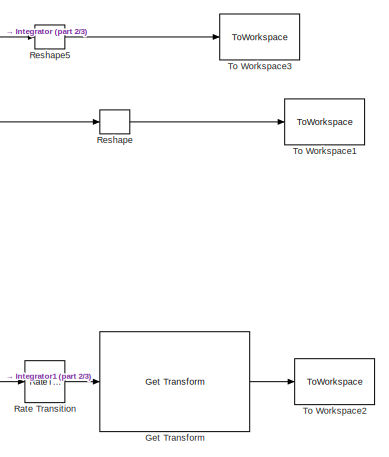
[diagram: root canvas - part 1/3, top right region]
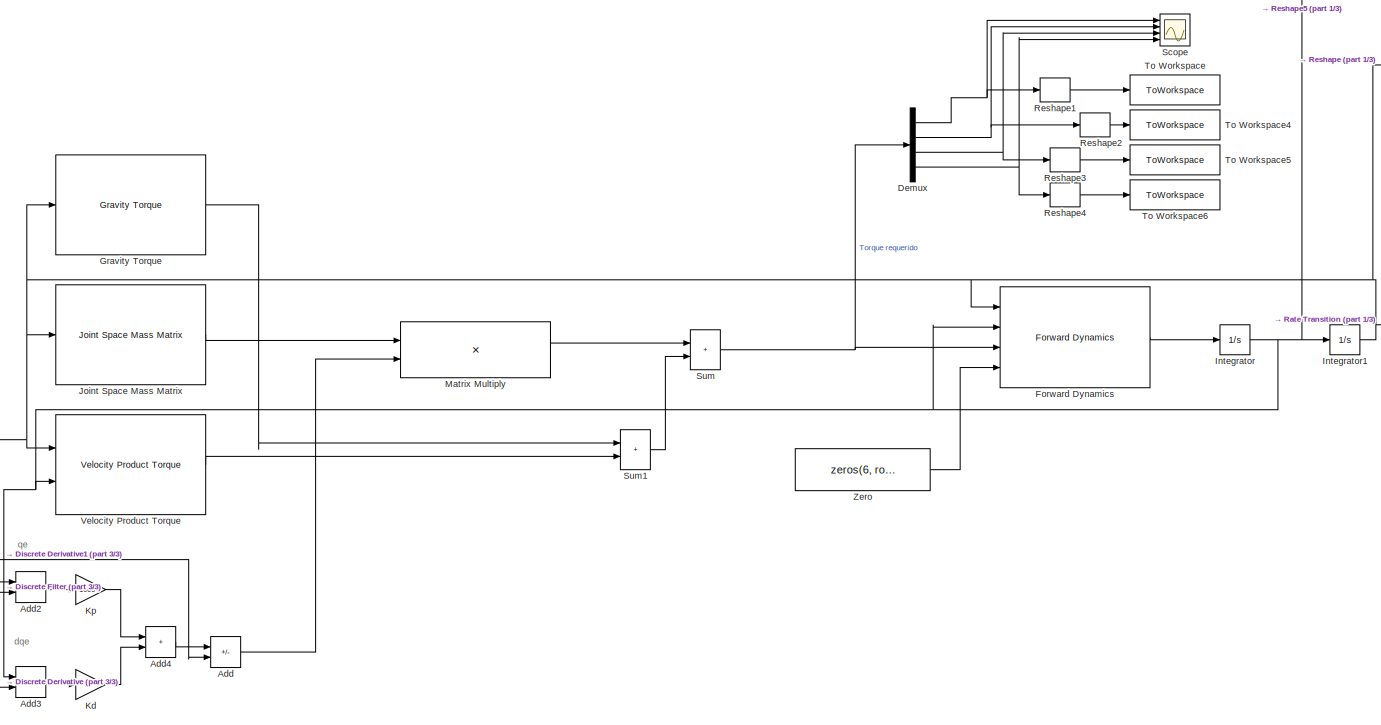
[diagram: root canvas - part 2/3, right side, full height]
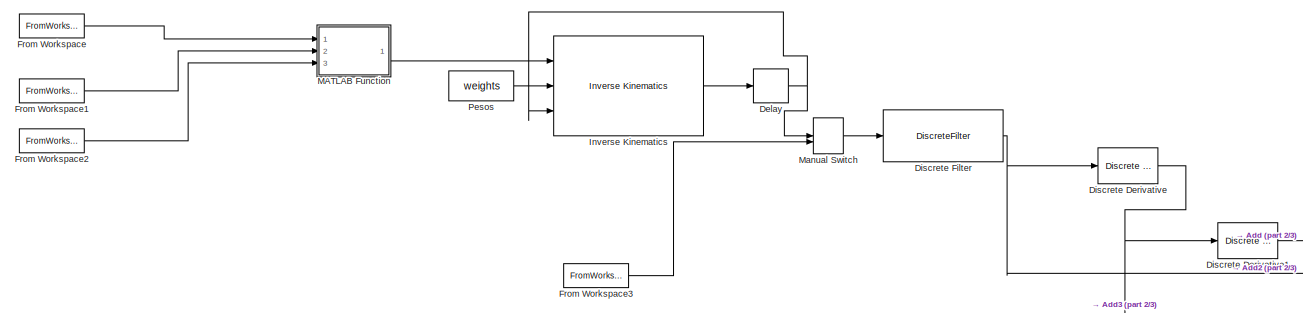
[diagram: root canvas - part 3/3, bottom left region]
MODEL slx_92962a83a6d9
KIND model
CONFIG AbsTol = auto
CONFIG EnableMultiTasking = off
CONFIG FixedStep = 0.001
CONFIG MaxStep = 10^-3
CONFIG MinStep = 10^-4
CONFIG RelTol = 1e-3
CONFIG SampleTimeConstraint = Unconstrained
CONFIG Solver = VariableStepAuto
CONFIG SolverName = VariableStepAuto
CONFIG StartTime = 0.0
CONFIG StopTime = 2
BLOCK [Sum] Add
  IconShape = rectangular
  Inputs = -+
  Ports = [2, 1]
BLOCK [Sum] Add2
  IconShape = rectangular
  Inputs = +-
  Ports = [2, 1]
BLOCK [Sum] Add3
  IconShape = rectangular
  Inputs = +-
  Ports = [2, 1]
BLOCK [Sum] Add4
  IconShape = rectangular
  Ports = [2, 1]
BLOCK [Delay] Delay
  DelayLength = 1
  InputPortMap = u0
  Ports = [1, 1]
BLOCK [Demux] Demux
  Ports = [1, 4]
BLOCK [Reference] Discrete Derivative  REF=simulink/Discrete/Discrete Derivative
  Ports = [1, 1]
  SourceBlock = simulink/Discrete/Discrete Derivative
  SourceProductBaseCode = SL
  SourceType = Discrete Derivative
BLOCK [Reference] Discrete Derivative1  REF=simulink/Discrete/Discrete Derivative
  Ports = [1, 1]
  SourceBlock = simulink/Discrete/Discrete Derivative
  SourceProductBaseCode = SL
  SourceType = Discrete Derivative
BLOCK [DiscreteFilter] Discrete Filter
  Denominator = [1]
  InitialStates = repmat(q0',19,1)
  InputPortMap = u0
  Numerator = ones(1,20)*1/20
  Ports = [1, 1]
BLOCK [Reference] Forward Dynamics  REF=robotmaniplib/Forward Dynamics
  Ports = [4, 1]
  SourceBlock = robotmaniplib/Forward Dynamics
  SourceProductBaseCode = RO
  SourceType = Forward Dynamics
BLOCK [FromWorkspace] From Workspace
  VariableName = posx
BLOCK [FromWorkspace] From Workspace1
  VariableName = posy
BLOCK [FromWorkspace] From Workspace2
  VariableName = posz
BLOCK [FromWorkspace] From Workspace3
  VariableName = q2
BLOCK [Reference] Get Transform  REF=robotmaniplib/Get Transform
  Ports = [1, 1]
  SourceBlock = robotmaniplib/Get Transform
  SourceProductBaseCode = RO
  SourceType = Get Transform
BLOCK [Reference] Gravity Torque  REF=robotmaniplib/Gravity Torque
  Ports = [1, 1]
  SourceBlock = robotmaniplib/Gravity Torque
  SourceProductBaseCode = RO
  SourceType = Gravity Torque
BLOCK [Integrator] Integrator
  Ports = [1, 1]
BLOCK [Integrator] Integrator1
  Ports = [1, 1]
BLOCK [Reference] Inverse Kinematics  REF=robotmaniplib/Inverse Kinematics
  Ports = [3, 2]
  SourceBlock = robotmaniplib/Inverse Kinematics
  SourceProductBaseCode = RO
  SourceType = Inverse Kinematics
BLOCK [Reference] Joint Space Mass Matrix  REF=robotmaniplib/Joint Space Mass Matrix
  Ports = [1, 1]
  SourceBlock = robotmaniplib/Joint Space Mass Matrix
  SourceProductBaseCode = RO
  SourceType = Joint Space Mass Matrix
BLOCK [Gain] Kd
BLOCK [Gain] Kp
  Gain = 1000
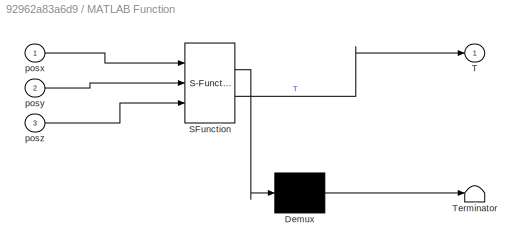
BLOCK [SubSystem] MATLAB Function
  ErrorFcn = Stateflow.Translate.translate
  PermitHierarchicalResolution = ExplicitOnly
  Ports = [3, 1]
  RequestExecContextInheritance = off
  SFBlockType = MATLAB Function
  TreatAsAtomicUnit = on
BLOCK [Demux] MATLAB Function/ Demux 
  Outputs = 1
  Ports = [1, 1]
BLOCK [S-Function] MATLAB Function/ SFunction 
  EnableBusSupport = on
  FunctionName = sf_sfun
  PortCounts = [3 2]
  Ports = [3, 2]
  SFcnIsStateOwnerBlock = off
  SFunctionDeploymentMode = off
  Tag = Stateflow S-Function 2
BLOCK [Terminator] MATLAB Function/ Terminator 
BLOCK [Outport] MATLAB Function/T
BLOCK [Inport] MATLAB Function/posx
BLOCK [Inport] MATLAB Function/posy
  Port = 2
BLOCK [Inport] MATLAB Function/posz
  Port = 3
BLOCK [ManualSwitch] Manual Switch
  CurrentSetting = 0
BLOCK [Product] Matrix Multiply
  Multiplication = Matrix(*)
  Ports = [2, 1]
BLOCK [Constant] Pesos
  Value = weights
BLOCK [RateTransition] Rate Transition
BLOCK [Reshape] Reshape
  Ports = [1, 1]
BLOCK [Reshape] Reshape1
  Ports = [1, 1]
BLOCK [Reshape] Reshape2
  Ports = [1, 1]
BLOCK [Reshape] Reshape3
  Ports = [1, 1]
BLOCK [Reshape] Reshape4
  Ports = [1, 1]
BLOCK [Reshape] Reshape5
  Ports = [1, 1]
BLOCK [Scope] Scope
  Floating = off
  NumInputPorts = 4
  Ports = [4]
  ScopeSpecificationString = Simulink.scopes.TimeScopeBlockCfg('CurrentConfiguration', extmgr.ConfigurationSet(extmgr.Configuration('Core','General UI',true),extmgr.Configuration('Core','Source UI',true),extmgr.Configuration('Sources','WiredSimulink',true),extmgr.Configuration('Visuals','Time Domain',true,'SerializedDisplays',{struct('MinYLimReal','-0.51727','MaxYLimReal','1.12669','YLabelReal','','MinYLimMag','0.00000','MaxY...<+3358ch>
BLOCK [Sum] Sum
  IconShape = rectangular
  Inputs = |++
  Ports = [2, 1]
BLOCK [Sum] Sum1
  IconShape = rectangular
  Inputs = |++
  Ports = [2, 1]
BLOCK [ToWorkspace] To Workspace
  FixptAsFi = on
  MaxDataPoints = inf
  Ports = [1]
  SampleTime = -1
  SaveFormat = Timeseries
  VariableName = torque1
BLOCK [ToWorkspace] To Workspace1
  FixptAsFi = on
  MaxDataPoints = inf
  Ports = [1]
  SampleTime = -1
  Save2DSignal = 2-D array (concatenate along first dimension)
  VariableName = jointData
BLOCK [ToWorkspace] To Workspace2
  FixptAsFi = on
  MaxDataPoints = inf
  Ports = [1]
  SampleTime = -1
  VariableName = poseData
BLOCK [ToWorkspace] To Workspace3
  FixptAsFi = on
  MaxDataPoints = inf
  Ports = [1]
  SampleTime = -1
  Save2DSignal = 2-D array (concatenate along first dimension)
  VariableName = velocidades
BLOCK [ToWorkspace] To Workspace4
  FixptAsFi = on
  MaxDataPoints = inf
  Ports = [1]
  SampleTime = -1
  SaveFormat = Timeseries
  VariableName = torque2
BLOCK [ToWorkspace] To Workspace5
  FixptAsFi = on
  MaxDataPoints = inf
  Ports = [1]
  SampleTime = -1
  SaveFormat = Timeseries
  VariableName = torque3
BLOCK [ToWorkspace] To Workspace6
  FixptAsFi = on
  MaxDataPoints = inf
  Ports = [1]
  SampleTime = -1
  SaveFormat = Timeseries
  VariableName = torque4
BLOCK [Reference] Velocity Product Torque  REF=robotmaniplib/Velocity Product Torque
  Ports = [2, 1]
  SourceBlock = robotmaniplib/Velocity Product Torque
  SourceProductBaseCode = RO
  SourceType = Velocity Product Torque
BLOCK [Constant] Zero
  OutDataTypeStr = Inherit: Inherit via back propagation
  Value = zeros(6, robot.NumBodies)
ANNOTATION (root): qe
ANNOTATION (root): dqe
LINE Add2:1 -> Kp:1
LINE Add3:1 -> Kd:1
LINE Add4:1 -> Add:1
LINE Add:1 -> Matrix Multiply:2
NET Delay:1 -> Inverse Kinematics:3, Manual Switch:1
NET Demux:1 -> Reshape1:1, Scope:1
NET Demux:2 -> Reshape2:1, Scope:2
NET Demux:3 -> Reshape3:1, Scope:3
NET Demux:4 -> Reshape4:1, Scope:4
LINE Discrete Derivative1:1 -> Add:2
NET Discrete Derivative:1 -> Add3:2, Discrete Derivative1:1
NET Discrete Filter:1 -> Add2:2, Discrete Derivative:1
LINE Forward Dynamics:1 -> Integrator:1
LINE From Workspace1:1 -> MATLAB Function:2
LINE From Workspace2:1 -> MATLAB Function:3
LINE From Workspace3:1 -> Manual Switch:2
LINE From Workspace:1 -> MATLAB Function:1
LINE Get Transform:1 -> To Workspace2:1
LINE Gravity Torque:1 -> Sum1:1
NET Integrator1:1 -> Add2:1, Forward Dynamics:1, Gravity Torque:1, Joint Space Mass Matrix:1, Rate Transition:1, Reshape:1, Velocity Product Torque:1
NET Integrator:1 -> Add3:1, Forward Dynamics:2, Integrator1:1, Reshape5:1, Velocity Product Torque:2
LINE Inverse Kinematics:1 -> Delay:1
LINE Joint Space Mass Matrix:1 -> Matrix Multiply:1
LINE Kd:1 -> Add4:2
LINE Kp:1 -> Add4:1
LINE MATLAB Function:1 -> Inverse Kinematics:1
LINE Manual Switch:1 -> Discrete Filter:1
LINE Matrix Multiply:1 -> Sum:1
LINE Pesos:1 -> Inverse Kinematics:2
LINE Rate Transition:1 -> Get Transform:1
LINE Reshape1:1 -> To Workspace:1
LINE Reshape2:1 -> To Workspace4:1
LINE Reshape3:1 -> To Workspace5:1
LINE Reshape4:1 -> To Workspace6:1
LINE Reshape5:1 -> To Workspace3:1
LINE Reshape:1 -> To Workspace1:1
LINE Sum1:1 -> Sum:2
NET Sum:1 -> Demux:1, Forward Dynamics:3
LINE Velocity Product Torque:1 -> Sum1:2
LINE Zero:1 -> Forward Dynamics:4
note: NET lines group one-source signal fan-out (src -> all destinations, sorted); 1:1 wires keep LINE
CHART MATLAB Function states=1 transitions=1
  STATE_LABEL 'eML_blk_kernel()'
  STATE_LABEL 'SCRIPT:\nfunction T = fcn(posx,posy,posz)\npos = [posx,posy,posz];\nT=trvec2tform(pos);\n\n'
CHART  states=0 transitions=0
